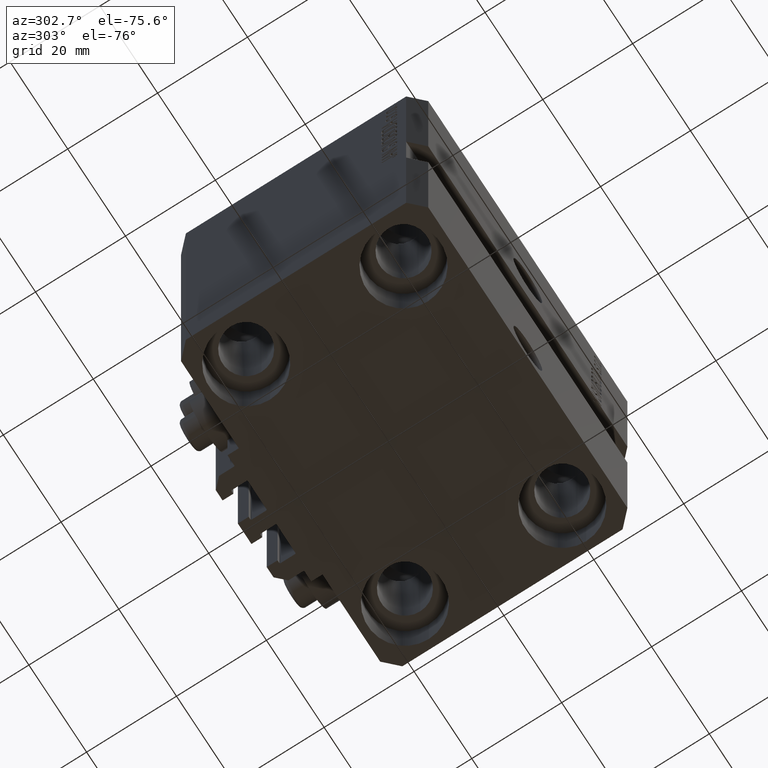
[diagram: clean part render]
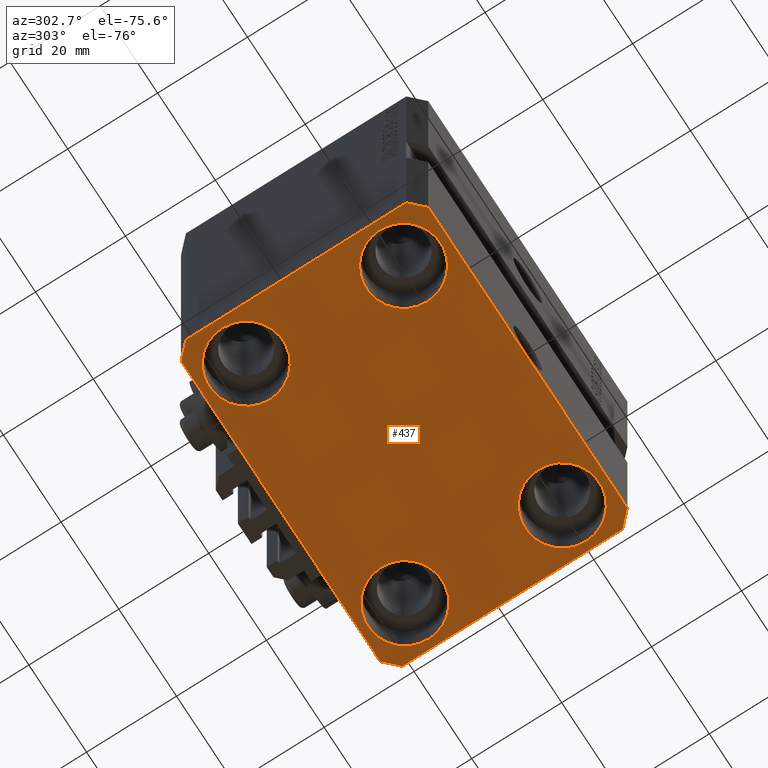
[diagram: same view with one face highlighted and labeled with its STEP entity id]
A machine part, auxiliary view. The second image highlights one B-rep face of the part: STEP entity #437.
In plain terms, the highlighted planar face has unit normal (0, 0, 1).
Its self-contained STEP definition (entity closure, byte-faithful):
#437 = ADVANCED_FACE ( 'NONE', ( #33128, #8006, #22483, #4450, #30514 ), #41156, .F. ) ;
#538 = VERTEX_POINT ( 'NONE', #46089 ) ;
#835 = CARTESIAN_POINT ( 'NONE',  ( -37.49999999999999289, 24.50000000000000000, -80.00000000000000000 ) ) ;
#864 = DIRECTION ( 'NONE',  ( -0.000000000000000000, -0.000000000000000000, 1.000000000000000000 ) ) ;
#1258 = EDGE_CURVE ( 'NONE', #34592, #41661, #39250, .T. ) ;
#1342 = ORIENTED_EDGE ( 'NONE', *, *, #11682, .F. ) ;
#1718 = ORIENTED_EDGE ( 'NONE', *, *, #18210, .F. ) ;
#2643 = ORIENTED_EDGE ( 'NONE', *, *, #13950, .T. ) ;
#2645 = DIRECTION ( 'NONE',  ( 1.000000000000000000, 0.000000000000000000, 0.000000000000000000 ) ) ;
#2930 = ORIENTED_EDGE ( 'NONE', *, *, #18897, .T. ) ;
#2941 = CIRCLE ( 'NONE', #5957, 8.250000000000000000 ) ;
#3481 = DIRECTION ( 'NONE',  ( 1.000000000000000000, 0.000000000000000000, 0.000000000000000000 ) ) ;
#3542 = VERTEX_POINT ( 'NONE', #20168 ) ;
#3643 = EDGE_CURVE ( 'NONE', #14024, #13679, #33918, .T. ) ;
#4089 = CARTESIAN_POINT ( 'NONE',  ( 37.50000000000051870, 24.49999999999995381, -80.00000000000000000 ) ) ;
#4450 = FACE_BOUND ( 'NONE', #27280, .T. ) ;
#4659 = CARTESIAN_POINT ( 'NONE',  ( -27.50000000000000355, 17.50000000000000000, -80.00000000000000000 ) ) ;
#5276 = CARTESIAN_POINT ( 'NONE',  ( -34.49999999999999289, 27.50000000000000000, -80.00000000000000000 ) ) ;
#5741 = LINE ( 'NONE', #5276, #32871 ) ;
#5783 = CARTESIAN_POINT ( 'NONE',  ( -19.25000000000000355, 17.50000000000000000, -80.00000000000000000 ) ) ;
#5957 = AXIS2_PLACEMENT_3D ( 'NONE', #21504, #7980, #3481 ) ;
#6089 = CARTESIAN_POINT ( 'NONE',  ( 37.49999999999999289, -24.50000000000000000, -80.00000000000000000 ) ) ;
#6094 = VECTOR ( 'NONE', #29537, 1000.000000000000000 ) ;
#6311 = AXIS2_PLACEMENT_3D ( 'NONE', #35002, #42337, #24113 ) ;
#6676 = EDGE_CURVE ( 'NONE', #20534, #44410, #23437, .T. ) ;
#6701 = LINE ( 'NONE', #17138, #34829 ) ;
#6929 = DIRECTION ( 'NONE',  ( 1.076236605503979380E-14, 1.000000000000000000, 0.000000000000000000 ) ) ;
#7234 = LINE ( 'NONE', #835, #6094 ) ;
#7337 = ORIENTED_EDGE ( 'NONE', *, *, #40735, .T. ) ;
#7728 = ORIENTED_EDGE ( 'NONE', *, *, #3643, .F. ) ;
#7980 = DIRECTION ( 'NONE',  ( -0.000000000000000000, -0.000000000000000000, 1.000000000000000000 ) ) ;
#8006 = FACE_BOUND ( 'NONE', #20343, .T. ) ;
#8587 = DIRECTION ( 'NONE',  ( -0.7071067811865471286, -0.7071067811865479058, 0.000000000000000000 ) ) ;
#8793 = CARTESIAN_POINT ( 'NONE',  ( -34.49999999999998579, -27.49999999999999645, -80.00000000000000000 ) ) ;
#8902 = EDGE_CURVE ( 'NONE', #13679, #41888, #6701, .T. ) ;
#9019 = DIRECTION ( 'NONE',  ( -1.000000000000000000, 0.000000000000000000, 0.000000000000000000 ) ) ;
#9022 = DIRECTION ( 'NONE',  ( 1.000000000000000000, 0.000000000000000000, 0.000000000000000000 ) ) ;
#9197 = LINE ( 'NONE', #20576, #46661 ) ;
#9279 = AXIS2_PLACEMENT_3D ( 'NONE', #43353, #43123, #10670 ) ;
#9862 = CARTESIAN_POINT ( 'NONE',  ( 19.25000000000000000, 17.50000000000001066, -80.00000000000000000 ) ) ;
#10042 = CARTESIAN_POINT ( 'NONE',  ( 35.74999999999999289, 17.50000000000001066, -80.00000000000000000 ) ) ;
#10171 = CARTESIAN_POINT ( 'NONE',  ( -27.50000000000000355, -17.50000000000000000, -80.00000000000000000 ) ) ;
#10363 = CARTESIAN_POINT ( 'NONE',  ( 35.75000000000000711, -17.50000000000000000, -80.00000000000000000 ) ) ;
#10670 = DIRECTION ( 'NONE',  ( 1.000000000000000000, 0.000000000000000000, 0.000000000000000000 ) ) ;
#11682 = EDGE_CURVE ( 'NONE', #3542, #29926, #40328, .T. ) ;
#12288 = VERTEX_POINT ( 'NONE', #10363 ) ;
#12703 = CIRCLE ( 'NONE', #36944, 8.249999999999992895 ) ;
#13621 = CARTESIAN_POINT ( 'NONE',  ( -37.49999999999999289, 24.50000000000000000, -80.00000000000000000 ) ) ;
#13624 = VERTEX_POINT ( 'NONE', #9862 ) ;
#13679 = VERTEX_POINT ( 'NONE', #17912 ) ;
#13950 = EDGE_CURVE ( 'NONE', #44410, #20534, #36519, .T. ) ;
#14024 = VERTEX_POINT ( 'NONE', #19895 ) ;
#14922 = ORIENTED_EDGE ( 'NONE', *, *, #8902, .F. ) ;
#15322 = DIRECTION ( 'NONE',  ( 1.000000000000000000, 0.000000000000000000, 0.000000000000000000 ) ) ;
#15616 = VERTEX_POINT ( 'NONE', #10042 ) ;
#17061 = DIRECTION ( 'NONE',  ( -0.000000000000000000, -0.000000000000000000, 1.000000000000000000 ) ) ;
#17138 = CARTESIAN_POINT ( 'NONE',  ( 34.49999999999999289, -27.49999999999999645, -80.00000000000000000 ) ) ;
#17912 = CARTESIAN_POINT ( 'NONE',  ( 34.49999999999999289, -27.49999999999999645, -80.00000000000000000 ) ) ;
#17998 = ORIENTED_EDGE ( 'NONE', *, *, #30457, .F. ) ;
#18070 = DIRECTION ( 'NONE',  ( -0.7071067811865356934, 0.7071067811865594521, 0.000000000000000000 ) ) ;
#18210 = EDGE_CURVE ( 'NONE', #22284, #46668, #5741, .T. ) ;
#18455 = AXIS2_PLACEMENT_3D ( 'NONE', #10171, #17061, #24189 ) ;
#18594 = AXIS2_PLACEMENT_3D ( 'NONE', #23163, #38301, #30506 ) ;
#18619 = VECTOR ( 'NONE', #6929, 1000.000000000000000 ) ;
#18839 = AXIS2_PLACEMENT_3D ( 'NONE', #32723, #46675, #36042 ) ;
#18897 = EDGE_CURVE ( 'NONE', #12288, #538, #29811, .T. ) ;
#19465 = EDGE_LOOP ( 'NONE', ( #20019, #32448 ) ) ;
#19552 = AXIS2_PLACEMENT_3D ( 'NONE', #30292, #45386, #44925 ) ;
#19895 = CARTESIAN_POINT ( 'NONE',  ( -34.49999999999998579, -27.49999999999999645, -80.00000000000000000 ) ) ;
#20001 = CARTESIAN_POINT ( 'NONE',  ( -35.75000000000000711, -17.50000000000000000, -80.00000000000000000 ) ) ;
#20019 = ORIENTED_EDGE ( 'NONE', *, *, #1258, .T. ) ;
#20168 = CARTESIAN_POINT ( 'NONE',  ( 37.50000000000051870, 24.49999999999995381, -80.00000000000000000 ) ) ;
#20343 = EDGE_LOOP ( 'NONE', ( #7337, #2930 ) ) ;
#20534 = VERTEX_POINT ( 'NONE', #25241 ) ;
#20576 = CARTESIAN_POINT ( 'NONE',  ( -37.49999999999999289, -24.50000000000000000, -80.00000000000000000 ) ) ;
#20933 = EDGE_CURVE ( 'NONE', #41661, #34592, #38139, .T. ) ;
#21504 = CARTESIAN_POINT ( 'NONE',  ( 27.50000000000000355, -17.50000000000000000, -80.00000000000000000 ) ) ;
#21845 = EDGE_CURVE ( 'NONE', #29926, #22284, #29928, .T. ) ;
#22284 = VERTEX_POINT ( 'NONE', #29420 ) ;
#22405 = CIRCLE ( 'NONE', #18594, 8.249999999999992895 ) ;
#22483 = FACE_BOUND ( 'NONE', #31244, .T. ) ;
#23163 = CARTESIAN_POINT ( 'NONE',  ( 27.49999999999999645, 17.50000000000001066, -80.00000000000000000 ) ) ;
#23437 = CIRCLE ( 'NONE', #41584, 8.250000000000000000 ) ;
#23850 = ORIENTED_EDGE ( 'NONE', *, *, #32921, .F. ) ;
#24113 = DIRECTION ( 'NONE',  ( 1.000000000000000000, 0.000000000000000000, 0.000000000000000000 ) ) ;
#24189 = DIRECTION ( 'NONE',  ( 1.000000000000000000, 0.000000000000000000, 0.000000000000000000 ) ) ;
#24944 = ORIENTED_EDGE ( 'NONE', *, *, #44337, .F. ) ;
#25241 = CARTESIAN_POINT ( 'NONE',  ( -35.75000000000000711, 17.50000000000000000, -80.00000000000000000 ) ) ;
#25429 = CARTESIAN_POINT ( 'NONE',  ( 34.50000000000056843, 27.50000000000000000, -80.00000000000000000 ) ) ;
#25600 = EDGE_CURVE ( 'NONE', #15616, #13624, #22405, .T. ) ;
#26192 = EDGE_LOOP ( 'NONE', ( #27064, #1342, #17998, #14922, #7728, #23850, #24944, #1718 ) ) ;
#27064 = ORIENTED_EDGE ( 'NONE', *, *, #21845, .F. ) ;
#27280 = EDGE_LOOP ( 'NONE', ( #38010, #2643 ) ) ;
#28253 = DIRECTION ( 'NONE',  ( -0.000000000000000000, -0.000000000000000000, 1.000000000000000000 ) ) ;
#29420 = CARTESIAN_POINT ( 'NONE',  ( -34.49999999999999289, 27.50000000000000000, -80.00000000000000000 ) ) ;
#29537 = DIRECTION ( 'NONE',  ( 0.000000000000000000, -1.000000000000000000, 0.000000000000000000 ) ) ;
#29811 = CIRCLE ( 'NONE', #6311, 8.250000000000000000 ) ;
#29926 = VERTEX_POINT ( 'NONE', #25429 ) ;
#29928 = LINE ( 'NONE', #41479, #44213 ) ;
#30292 = CARTESIAN_POINT ( 'NONE',  ( 0.000000000000000000, 0.000000000000000000, -80.00000000000000000 ) ) ;
#30457 = EDGE_CURVE ( 'NONE', #41888, #3542, #42472, .T. ) ;
#30506 = DIRECTION ( 'NONE',  ( 1.000000000000000000, 0.000000000000000000, 0.000000000000000000 ) ) ;
#30514 = FACE_OUTER_BOUND ( 'NONE', #26192, .T. ) ;
#31244 = EDGE_LOOP ( 'NONE', ( #33687, #34607 ) ) ;
#31563 = CARTESIAN_POINT ( 'NONE',  ( 27.49999999999999645, 17.50000000000001066, -80.00000000000000000 ) ) ;
#31824 = CARTESIAN_POINT ( 'NONE',  ( 37.49999999999999289, -24.50000000000000000, -80.00000000000000000 ) ) ;
#32448 = ORIENTED_EDGE ( 'NONE', *, *, #20933, .T. ) ;
#32723 = CARTESIAN_POINT ( 'NONE',  ( -27.50000000000000355, -17.50000000000000000, -80.00000000000000000 ) ) ;
#32871 = VECTOR ( 'NONE', #8587, 1000.000000000000000 ) ;
#32921 = EDGE_CURVE ( 'NONE', #38471, #14024, #9197, .T. ) ;
#33128 = FACE_BOUND ( 'NONE', #19465, .T. ) ;
#33381 = CARTESIAN_POINT ( 'NONE',  ( -37.49999999999999289, -24.50000000000000000, -80.00000000000000000 ) ) ;
#33687 = ORIENTED_EDGE ( 'NONE', *, *, #35769, .T. ) ;
#33918 = LINE ( 'NONE', #8793, #40099 ) ;
#34592 = VERTEX_POINT ( 'NONE', #20001 ) ;
#34607 = ORIENTED_EDGE ( 'NONE', *, *, #25600, .T. ) ;
#34829 = VECTOR ( 'NONE', #42942, 1000.000000000000114 ) ;
#35002 = CARTESIAN_POINT ( 'NONE',  ( 27.50000000000000355, -17.50000000000000000, -80.00000000000000000 ) ) ;
#35258 = DIRECTION ( 'NONE',  ( 0.7071067811865483499, -0.7071067811865466846, 0.000000000000000000 ) ) ;
#35752 = CARTESIAN_POINT ( 'NONE',  ( -19.25000000000000355, -17.50000000000000000, -80.00000000000000000 ) ) ;
#35769 = EDGE_CURVE ( 'NONE', #13624, #15616, #12703, .T. ) ;
#36042 = DIRECTION ( 'NONE',  ( 1.000000000000000000, 0.000000000000000000, 0.000000000000000000 ) ) ;
#36519 = CIRCLE ( 'NONE', #9279, 8.250000000000000000 ) ;
#36944 = AXIS2_PLACEMENT_3D ( 'NONE', #31563, #28253, #2645 ) ;
#38010 = ORIENTED_EDGE ( 'NONE', *, *, #6676, .T. ) ;
#38139 = CIRCLE ( 'NONE', #18455, 8.250000000000000000 ) ;
#38301 = DIRECTION ( 'NONE',  ( -0.000000000000000000, -0.000000000000000000, 1.000000000000000000 ) ) ;
#38471 = VERTEX_POINT ( 'NONE', #33381 ) ;
#39250 = CIRCLE ( 'NONE', #18839, 8.250000000000000000 ) ;
#40099 = VECTOR ( 'NONE', #9022, 1000.000000000000000 ) ;
#40328 = LINE ( 'NONE', #4089, #44015 ) ;
#40735 = EDGE_CURVE ( 'NONE', #538, #12288, #2941, .T. ) ;
#41156 = PLANE ( 'NONE',  #19552 ) ;
#41479 = CARTESIAN_POINT ( 'NONE',  ( 34.50000000000056843, 27.50000000000000000, -80.00000000000000000 ) ) ;
#41584 = AXIS2_PLACEMENT_3D ( 'NONE', #4659, #864, #15322 ) ;
#41661 = VERTEX_POINT ( 'NONE', #35752 ) ;
#41888 = VERTEX_POINT ( 'NONE', #6089 ) ;
#42337 = DIRECTION ( 'NONE',  ( -0.000000000000000000, -0.000000000000000000, 1.000000000000000000 ) ) ;
#42472 = LINE ( 'NONE', #31824, #18619 ) ;
#42942 = DIRECTION ( 'NONE',  ( 0.7071067811865474617, 0.7071067811865474617, 0.000000000000000000 ) ) ;
#43123 = DIRECTION ( 'NONE',  ( -0.000000000000000000, -0.000000000000000000, 1.000000000000000000 ) ) ;
#43353 = CARTESIAN_POINT ( 'NONE',  ( -27.50000000000000355, 17.50000000000000000, -80.00000000000000000 ) ) ;
#44015 = VECTOR ( 'NONE', #18070, 1000.000000000000114 ) ;
#44213 = VECTOR ( 'NONE', #9019, 1000.000000000000000 ) ;
#44337 = EDGE_CURVE ( 'NONE', #46668, #38471, #7234, .T. ) ;
#44410 = VERTEX_POINT ( 'NONE', #5783 ) ;
#44925 = DIRECTION ( 'NONE',  ( 1.000000000000000000, 0.000000000000000000, -0.000000000000000000 ) ) ;
#45386 = DIRECTION ( 'NONE',  ( 0.000000000000000000, 0.000000000000000000, 1.000000000000000000 ) ) ;
#46089 = CARTESIAN_POINT ( 'NONE',  ( 19.25000000000000000, -17.50000000000000000, -80.00000000000000000 ) ) ;
#46661 = VECTOR ( 'NONE', #35258, 1000.000000000000000 ) ;
#46668 = VERTEX_POINT ( 'NONE', #13621 ) ;
#46675 = DIRECTION ( 'NONE',  ( -0.000000000000000000, -0.000000000000000000, 1.000000000000000000 ) ) ;